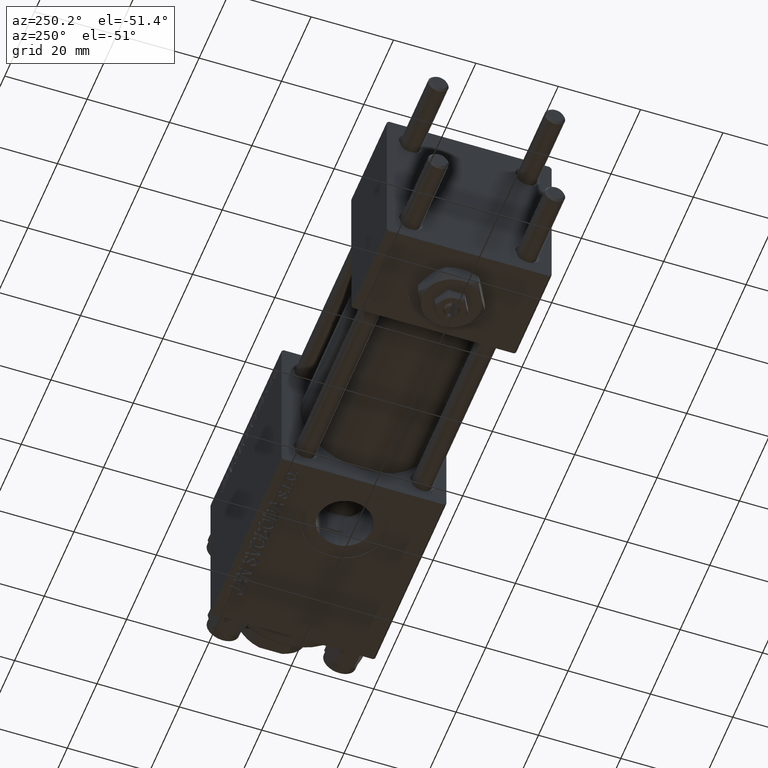
[diagram: clean part render]
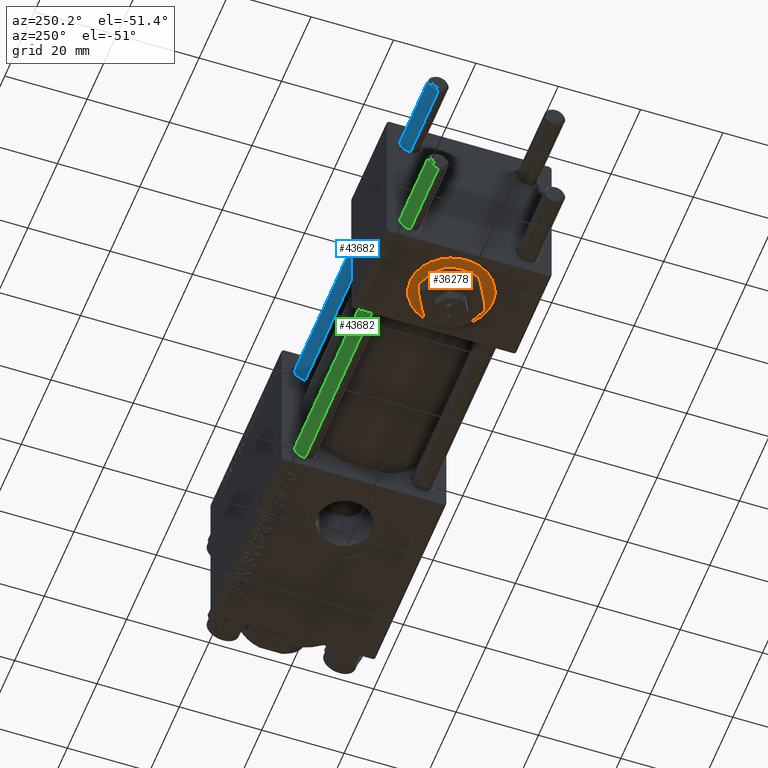
[diagram: same view with three faces highlighted in distinct colors, each labeled with its STEP entity id]
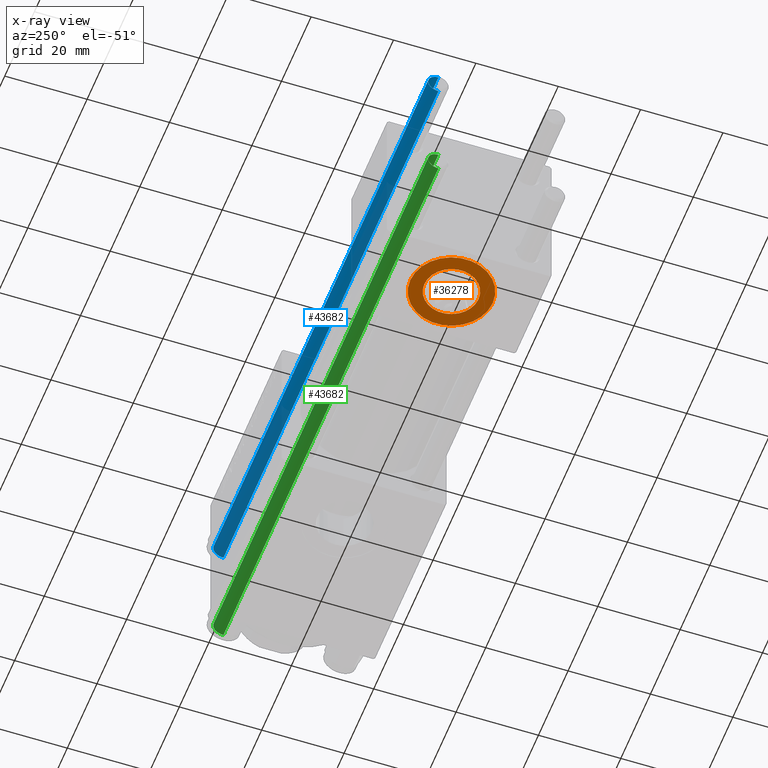
[diagram: x-ray of the same camera — body ghosted, the three highlighted faces saturated]
A machine part, auxiliary view with three faces highlighted in distinct colors.
The next image is the same camera in x-ray (body ghosted, the three faces saturated) — at least one of them is partly hidden behind the body in this view.
Their STEP definitions:

[orange] entity #36278 — the highlighted planar face has unit normal (0, -0, -1).
#1409 = CARTESIAN_POINT ( 'NONE',  ( 12.00000000000000000, -4.904328641410901403E-15, -19.80000000000000426 ) ) ;
#3451 = EDGE_LOOP ( 'NONE', ( #9979, #45799 ) ) ;
#3510 = DIRECTION ( 'NONE',  ( 0.000000000000000000, 1.000000000000000000, 0.000000000000000000 ) ) ;
#3945 = CARTESIAN_POINT ( 'NONE',  ( 12.00000000000000000, -4.904328641410901403E-15, -19.80000000000000426 ) ) ;
#4770 = AXIS2_PLACEMENT_3D ( 'NONE', #24783, #36580, #47408 ) ;
#5343 = DIRECTION ( 'NONE',  ( 0.000000000000000000, -1.734723475976806848E-16, -1.000000000000000000 ) ) ;
#5573 = DIRECTION ( 'NONE',  ( 0.000000000000000000, -1.734723475976806848E-16, -1.000000000000000000 ) ) ;
#8271 = AXIS2_PLACEMENT_3D ( 'NONE', #41541, #5573, #14754 ) ;
#8935 = CARTESIAN_POINT ( 'NONE',  ( 12.00000000000000178, -10.00000000000000711, -19.80000000000000426 ) ) ;
#9979 = ORIENTED_EDGE ( 'NONE', *, *, #20225, .T. ) ;
#10172 = CARTESIAN_POINT ( 'NONE',  ( 12.00000000000000000, -6.580000000000006288, -19.80000000000000426 ) ) ;
#12969 = FACE_OUTER_BOUND ( 'NONE', #3451, .T. ) ;
#14689 = EDGE_CURVE ( 'NONE', #42774, #39949, #44964, .T. ) ;
#14754 = DIRECTION ( 'NONE',  ( 0.000000000000000000, 1.000000000000000000, 0.000000000000000000 ) ) ;
#15825 = AXIS2_PLACEMENT_3D ( 'NONE', #23484, #43680, #3510 ) ;
#16588 = CARTESIAN_POINT ( 'NONE',  ( 12.00000000000000000, 6.579999999999994742, -19.80000000000000426 ) ) ;
#16811 = DIRECTION ( 'NONE',  ( 0.000000000000000000, 1.000000000000000000, 0.000000000000000000 ) ) ;
#17436 = DIRECTION ( 'NONE',  ( 0.000000000000000000, 1.000000000000000000, -1.734723475976806848E-16 ) ) ;
#17498 = EDGE_LOOP ( 'NONE', ( #41704, #27481 ) ) ;
#18037 = CARTESIAN_POINT ( 'NONE',  ( 12.00000000000000000, 9.999999999999996447, -19.80000000000000426 ) ) ;
#20225 = EDGE_CURVE ( 'NONE', #41888, #33406, #31772, .T. ) ;
#20292 = AXIS2_PLACEMENT_3D ( 'NONE', #3945, #35985, #16811 ) ;
#23484 = CARTESIAN_POINT ( 'NONE',  ( 12.00000000000000000, -4.904328641410901403E-15, -19.80000000000000426 ) ) ;
#24783 = CARTESIAN_POINT ( 'NONE',  ( 12.00000000000000000, -4.904328641410902191E-15, -19.80000000000000426 ) ) ;
#27481 = ORIENTED_EDGE ( 'NONE', *, *, #14689, .F. ) ;
#27725 = EDGE_CURVE ( 'NONE', #33406, #41888, #34527, .T. ) ;
#29232 = CIRCLE ( 'NONE', #8271, 6.580000000000000071 ) ;
#29522 = PLANE ( 'NONE',  #37295 ) ;
#31772 = CIRCLE ( 'NONE', #15825, 10.00000000000000178 ) ;
#32692 = FACE_BOUND ( 'NONE', #17498, .T. ) ;
#33406 = VERTEX_POINT ( 'NONE', #8935 ) ;
#34527 = CIRCLE ( 'NONE', #20292, 10.00000000000000178 ) ;
#35985 = DIRECTION ( 'NONE',  ( 0.000000000000000000, -1.734723475976806848E-16, -1.000000000000000000 ) ) ;
#36278 = ADVANCED_FACE ( 'NONE', ( #32692, #12969 ), #29522, .T. ) ;
#36580 = DIRECTION ( 'NONE',  ( 0.000000000000000000, -1.734723475976806848E-16, -1.000000000000000000 ) ) ;
#37295 = AXIS2_PLACEMENT_3D ( 'NONE', #1409, #5343, #17436 ) ;
#39949 = VERTEX_POINT ( 'NONE', #16588 ) ;
#41541 = CARTESIAN_POINT ( 'NONE',  ( 12.00000000000000000, -4.904328641410902191E-15, -19.80000000000000426 ) ) ;
#41704 = ORIENTED_EDGE ( 'NONE', *, *, #50203, .F. ) ;
#41888 = VERTEX_POINT ( 'NONE', #18037 ) ;
#42774 = VERTEX_POINT ( 'NONE', #10172 ) ;
#43680 = DIRECTION ( 'NONE',  ( 0.000000000000000000, -1.734723475976806848E-16, -1.000000000000000000 ) ) ;
#44964 = CIRCLE ( 'NONE', #4770, 6.580000000000000071 ) ;
#45799 = ORIENTED_EDGE ( 'NONE', *, *, #27725, .T. ) ;
#47408 = DIRECTION ( 'NONE',  ( 0.000000000000000000, 1.000000000000000000, 0.000000000000000000 ) ) ;
#50203 = EDGE_CURVE ( 'NONE', #39949, #42774, #29232, .T. ) ;

[blue] entity #43682 — the highlighted cylindrical surface (edge-blend (fillet) strip) has radius 2.5 mm, axis along (-1, -0, -0).
#2066 = CIRCLE ( 'NONE', #45644, 2.500000000000000000 ) ;
#2392 = VERTEX_POINT ( 'NONE', #38677 ) ;
#2543 = EDGE_CURVE ( 'NONE', #25051, #2392, #2066, .T. ) ;
#3737 = EDGE_CURVE ( 'NONE', #22270, #15685, #21269, .T. ) ;
#4956 = DIRECTION ( 'NONE',  ( -0.000000000000000000, -0.000000000000000000, -1.000000000000000000 ) ) ;
#5124 = VECTOR ( 'NONE', #46745, 1000.000000000000000 ) ;
#6091 = LINE ( 'NONE', #22118, #35987 ) ;
#12158 = DIRECTION ( 'NONE',  ( 0.000000000000000000, 0.000000000000000000, -1.000000000000000000 ) ) ;
#12777 = CARTESIAN_POINT ( 'NONE',  ( -2.500000000000000000, 0.000000000000000000, 0.5000000000000559552 ) ) ;
#14642 = ORIENTED_EDGE ( 'NONE', *, *, #2543, .T. ) ;
#15685 = VERTEX_POINT ( 'NONE', #12777 ) ;
#17579 = CARTESIAN_POINT ( 'NONE',  ( 0.000000000000000000, 0.000000000000000000, 145.5000000000000284 ) ) ;
#18378 = ORIENTED_EDGE ( 'NONE', *, *, #30076, .F. ) ;
#19588 = AXIS2_PLACEMENT_3D ( 'NONE', #38369, #22373, #49656 ) ;
#20450 = EDGE_CURVE ( 'NONE', #2392, #22270, #6091, .T. ) ;
#20980 = DIRECTION ( 'NONE',  ( -1.000000000000000000, 0.000000000000000000, 0.000000000000000000 ) ) ;
#21269 = CIRCLE ( 'NONE', #19588, 2.500000000000000000 ) ;
#21781 = DIRECTION ( 'NONE',  ( 1.000000000000000000, 0.000000000000000000, 0.000000000000000000 ) ) ;
#22118 = CARTESIAN_POINT ( 'NONE',  ( 2.500000000000000000, 3.061616997868383141E-16, 146.0000000000000000 ) ) ;
#22270 = VERTEX_POINT ( 'NONE', #26286 ) ;
#22373 = DIRECTION ( 'NONE',  ( -0.000000000000000000, -0.000000000000000000, 1.000000000000000000 ) ) ;
#25051 = VERTEX_POINT ( 'NONE', #25349 ) ;
#25349 = CARTESIAN_POINT ( 'NONE',  ( -2.500000000000000000, 0.000000000000000000, 145.5000000000000284 ) ) ;
#25685 = ORIENTED_EDGE ( 'NONE', *, *, #20450, .T. ) ;
#26286 = CARTESIAN_POINT ( 'NONE',  ( 2.500000000000000000, 3.061616997868383141E-16, 0.5000000000000559552 ) ) ;
#26817 = CARTESIAN_POINT ( 'NONE',  ( -2.500000000000000000, 0.000000000000000000, 146.0000000000000000 ) ) ;
#30076 = EDGE_CURVE ( 'NONE', #25051, #15685, #51189, .T. ) ;
#30397 = ORIENTED_EDGE ( 'NONE', *, *, #3737, .T. ) ;
#35987 = VECTOR ( 'NONE', #45726, 1000.000000000000000 ) ;
#38369 = CARTESIAN_POINT ( 'NONE',  ( 0.000000000000000000, 0.000000000000000000, 0.5000000000000559552 ) ) ;
#38677 = CARTESIAN_POINT ( 'NONE',  ( 2.500000000000000000, 3.061616997868383141E-16, 145.5000000000000284 ) ) ;
#38711 = EDGE_LOOP ( 'NONE', ( #14642, #25685, #30397, #18378 ) ) ;
#43682 = ADVANCED_FACE ( 'NONE', ( #49297 ), #45887, .T. ) ;
#45644 = AXIS2_PLACEMENT_3D ( 'NONE', #17579, #12158, #21781 ) ;
#45726 = DIRECTION ( 'NONE',  ( -0.000000000000000000, -0.000000000000000000, -1.000000000000000000 ) ) ;
#45887 = CYLINDRICAL_SURFACE ( 'NONE', #48401, 2.500000000000000000 ) ;
#46745 = DIRECTION ( 'NONE',  ( -0.000000000000000000, -0.000000000000000000, -1.000000000000000000 ) ) ;
#48401 = AXIS2_PLACEMENT_3D ( 'NONE', #49551, #4956, #20980 ) ;
#49297 = FACE_OUTER_BOUND ( 'NONE', #38711, .T. ) ;
#49551 = CARTESIAN_POINT ( 'NONE',  ( 0.000000000000000000, 0.000000000000000000, 146.0000000000000000 ) ) ;
#49656 = DIRECTION ( 'NONE',  ( 1.000000000000000000, 0.000000000000000000, 0.000000000000000000 ) ) ;
#51189 = LINE ( 'NONE', #26817, #5124 ) ;

[green] entity #43682 — the highlighted cylindrical surface (edge-blend (fillet) strip) has radius 2.5 mm, axis along (1, 0, -0).
#2066 = CIRCLE ( 'NONE', #45644, 2.500000000000000000 ) ;
#2392 = VERTEX_POINT ( 'NONE', #38677 ) ;
#2543 = EDGE_CURVE ( 'NONE', #25051, #2392, #2066, .T. ) ;
#3737 = EDGE_CURVE ( 'NONE', #22270, #15685, #21269, .T. ) ;
#4956 = DIRECTION ( 'NONE',  ( -0.000000000000000000, -0.000000000000000000, -1.000000000000000000 ) ) ;
#5124 = VECTOR ( 'NONE', #46745, 1000.000000000000000 ) ;
#6091 = LINE ( 'NONE', #22118, #35987 ) ;
#12158 = DIRECTION ( 'NONE',  ( 0.000000000000000000, 0.000000000000000000, -1.000000000000000000 ) ) ;
#12777 = CARTESIAN_POINT ( 'NONE',  ( -2.500000000000000000, 0.000000000000000000, 0.5000000000000559552 ) ) ;
#14642 = ORIENTED_EDGE ( 'NONE', *, *, #2543, .T. ) ;
#15685 = VERTEX_POINT ( 'NONE', #12777 ) ;
#17579 = CARTESIAN_POINT ( 'NONE',  ( 0.000000000000000000, 0.000000000000000000, 145.5000000000000284 ) ) ;
#18378 = ORIENTED_EDGE ( 'NONE', *, *, #30076, .F. ) ;
#19588 = AXIS2_PLACEMENT_3D ( 'NONE', #38369, #22373, #49656 ) ;
#20450 = EDGE_CURVE ( 'NONE', #2392, #22270, #6091, .T. ) ;
#20980 = DIRECTION ( 'NONE',  ( -1.000000000000000000, 0.000000000000000000, 0.000000000000000000 ) ) ;
#21269 = CIRCLE ( 'NONE', #19588, 2.500000000000000000 ) ;
#21781 = DIRECTION ( 'NONE',  ( 1.000000000000000000, 0.000000000000000000, 0.000000000000000000 ) ) ;
#22118 = CARTESIAN_POINT ( 'NONE',  ( 2.500000000000000000, 3.061616997868383141E-16, 146.0000000000000000 ) ) ;
#22270 = VERTEX_POINT ( 'NONE', #26286 ) ;
#22373 = DIRECTION ( 'NONE',  ( -0.000000000000000000, -0.000000000000000000, 1.000000000000000000 ) ) ;
#25051 = VERTEX_POINT ( 'NONE', #25349 ) ;
#25349 = CARTESIAN_POINT ( 'NONE',  ( -2.500000000000000000, 0.000000000000000000, 145.5000000000000284 ) ) ;
#25685 = ORIENTED_EDGE ( 'NONE', *, *, #20450, .T. ) ;
#26286 = CARTESIAN_POINT ( 'NONE',  ( 2.500000000000000000, 3.061616997868383141E-16, 0.5000000000000559552 ) ) ;
#26817 = CARTESIAN_POINT ( 'NONE',  ( -2.500000000000000000, 0.000000000000000000, 146.0000000000000000 ) ) ;
#30076 = EDGE_CURVE ( 'NONE', #25051, #15685, #51189, .T. ) ;
#30397 = ORIENTED_EDGE ( 'NONE', *, *, #3737, .T. ) ;
#35987 = VECTOR ( 'NONE', #45726, 1000.000000000000000 ) ;
#38369 = CARTESIAN_POINT ( 'NONE',  ( 0.000000000000000000, 0.000000000000000000, 0.5000000000000559552 ) ) ;
#38677 = CARTESIAN_POINT ( 'NONE',  ( 2.500000000000000000, 3.061616997868383141E-16, 145.5000000000000284 ) ) ;
#38711 = EDGE_LOOP ( 'NONE', ( #14642, #25685, #30397, #18378 ) ) ;
#43682 = ADVANCED_FACE ( 'NONE', ( #49297 ), #45887, .T. ) ;
#45644 = AXIS2_PLACEMENT_3D ( 'NONE', #17579, #12158, #21781 ) ;
#45726 = DIRECTION ( 'NONE',  ( -0.000000000000000000, -0.000000000000000000, -1.000000000000000000 ) ) ;
#45887 = CYLINDRICAL_SURFACE ( 'NONE', #48401, 2.500000000000000000 ) ;
#46745 = DIRECTION ( 'NONE',  ( -0.000000000000000000, -0.000000000000000000, -1.000000000000000000 ) ) ;
#48401 = AXIS2_PLACEMENT_3D ( 'NONE', #49551, #4956, #20980 ) ;
#49297 = FACE_OUTER_BOUND ( 'NONE', #38711, .T. ) ;
#49551 = CARTESIAN_POINT ( 'NONE',  ( 0.000000000000000000, 0.000000000000000000, 146.0000000000000000 ) ) ;
#49656 = DIRECTION ( 'NONE',  ( 1.000000000000000000, 0.000000000000000000, 0.000000000000000000 ) ) ;
#51189 = LINE ( 'NONE', #26817, #5124 ) ;